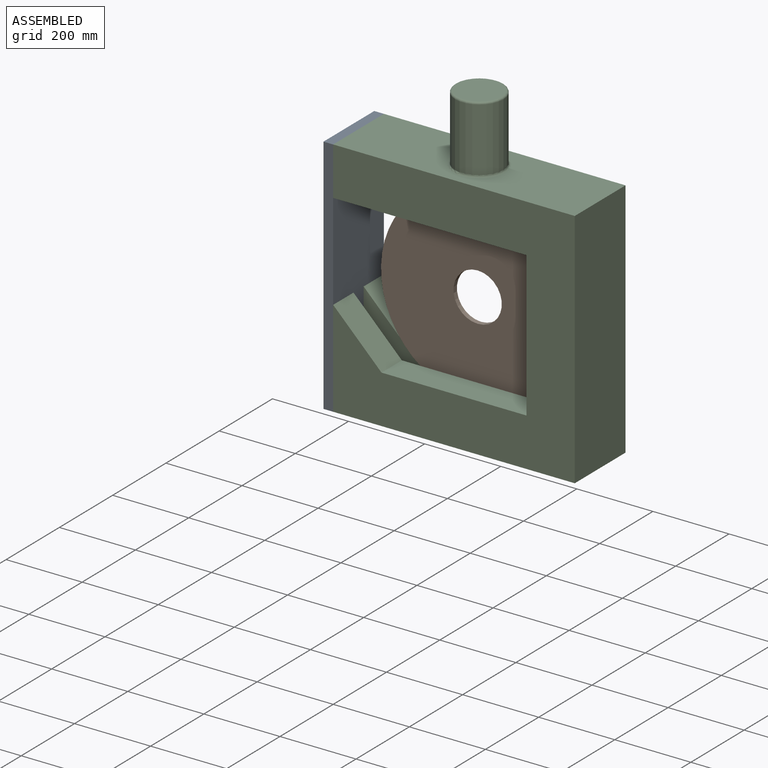
[diagram: assembled view]
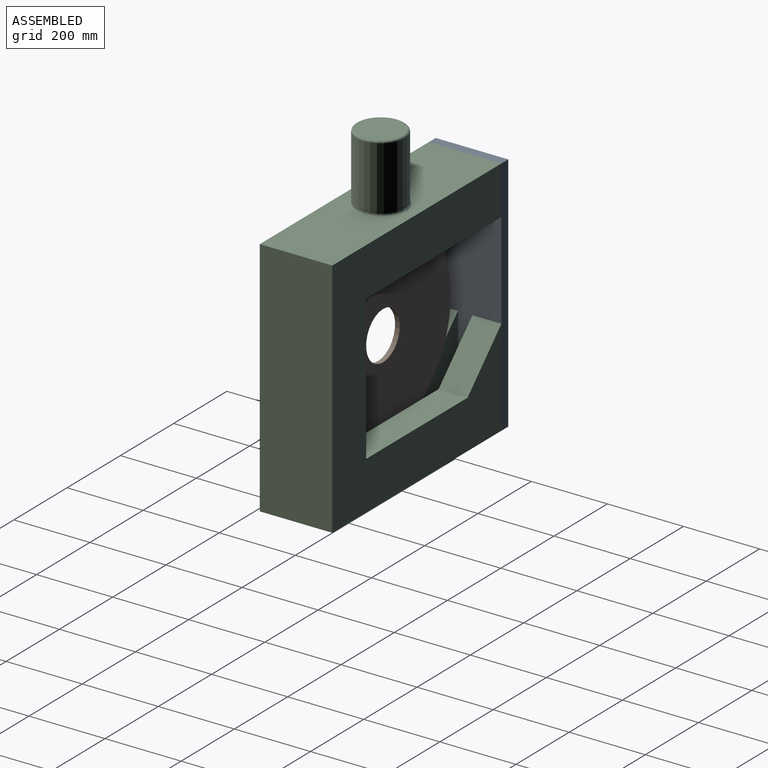
[diagram: assembled view, second angle]
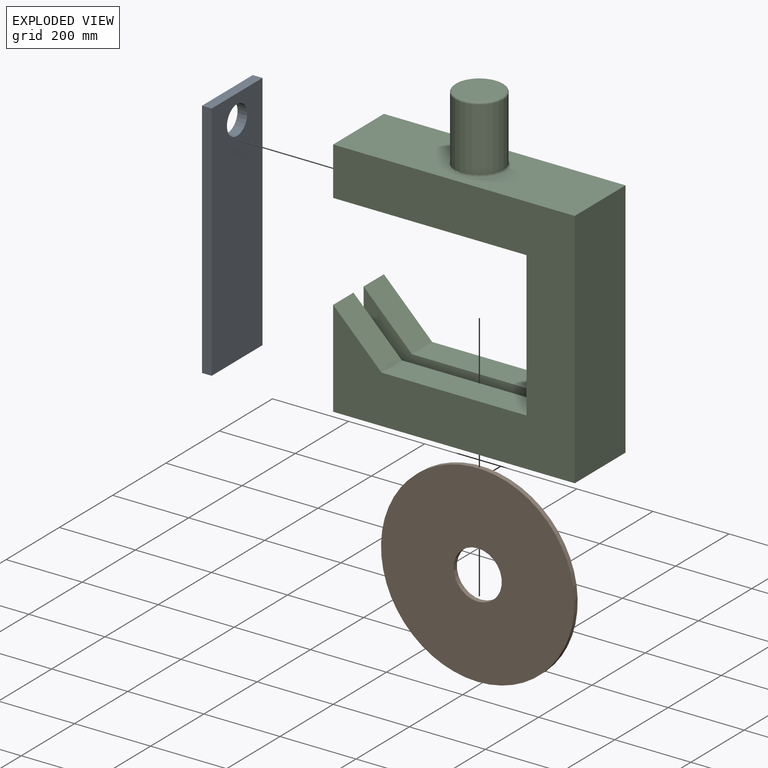
[diagram: exploded view]
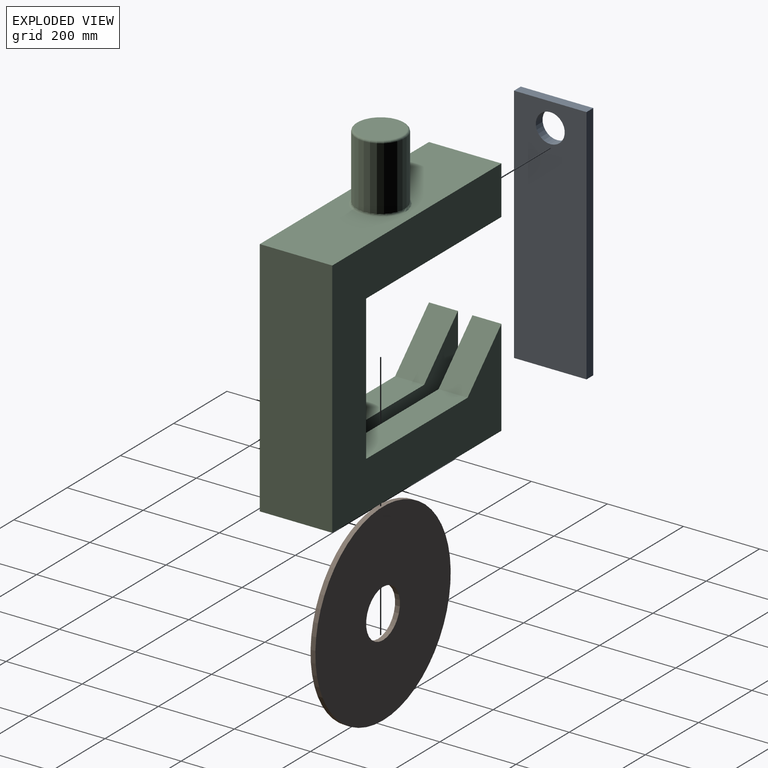
[diagram: exploded view, second angle]
ASSEMBLY  parts=3 mates=5
PART A: 7 faces, bbox 635x190.5x25.4 mm
  f0: plane 635x25.4mm, normal (0,1,0), area 16129mm2, adj f1,f4,f5,f6
  f1: plane 190.5x25.4mm, normal (-1,0,0), area 4838.7mm2, adj f0,f2,f5,f6
  f2: plane 635x25.4mm, normal (0,-1,0), area 16129mm2, adj f1,f4,f5,f6
  f3: cylinder r=38.1mm len=76.2mm, axis (0,0,-1), area 6080.5mm2, adj f5,f6
  f4: plane 190.5x25.4mm, normal (1,0,0), area 4838.7mm2, adj f0,f2,f5,f6
  f5: plane 635x190.5mm, normal (0,0,1), area 116407.1mm2, adj f0,f1,f2,f3,f4
  f6: plane 635x190.5mm, normal (0,0,-1), area 116407.1mm2, adj f0,f1,f2,f3,f4
PART B: 6 faces, bbox 508x12.7x508 mm
  f0: cylinder r=254mm len=508mm, axis (0,1,0), area 20268.3mm2, adj f2,f3,f4
  f1: cylinder r=63.5mm len=127mm, axis (0,1,0), area 5067.1mm2, adj f2,f3
  f2: plane 508x508mm, normal (0,-1,0), area 190015.3mm2, adj f0,f1
  f3: plane 508x508mm, normal (0,1,0), area 190015.3mm2, adj f0,f1
  f4: cylinder r=1.27mm len=127mm, axis (1,0,0), area 1013.4mm2, adj f0,f5
  f5: plane 2.54x2.54mm, normal (1,0,0), area 5.1mm2, adj f4
PART C: 24 faces, bbox 635x190.5x812.8 mm
  f0: plane 508x76.2mm, normal (0,0,-1), area 38709.6mm2, adj f1,f8,f14,f18
  f1: plane 381x76.2mm, normal (-1,0,0), area 29032.2mm2, adj f0,f2,f14,f18
  f2: plane 381x76.2mm, normal (0,0,1), area 29032.2mm2, adj f1,f3,f14,f18
  f3: plane 127x127mm, normal (0.71,0,0.71), area 13685.9mm2, adj f2,f4,f14,f18
  f4: plane 254x190.5mm, normal (-1,0,0), area 41129mm2, adj f3,f5,f12,f13,f14,f15,f18,f19
  f5: plane 635x190.5mm, normal (0,0,-1), area 120967.5mm2, adj f4,f6,f13,f14
  f6: plane 635x190.5mm, normal (1,0,0), area 120967.5mm2, adj f5,f7,f13,f14
  f7: plane 635x190.5mm, normal (0,0,1), area 106191.9mm2, adj f6,f8,f13,f14,f22
  f8: plane 190.5x127mm, normal (-1,0,0), area 21774.2mm2, adj f0,f7,f9,f13,f14,f17,f18,f19
  f9: plane 508x76.2mm, normal (0,0,-1), area 38709.6mm2, adj f8,f10,f13,f19
  f10: plane 381x76.2mm, normal (-1,0,0), area 29032.2mm2, adj f9,f11,f13,f19
  f11: plane 381x76.2mm, normal (0,0,1), area 29032.2mm2, adj f10,f12,f13,f19
  f12: plane 127x127mm, normal (0.71,0,0.71), area 13685.9mm2, adj f4,f11,f13,f19
  f13: plane 635x635mm, normal (0,-1,0), area 217741.5mm2, adj f4,f5,f6,f7,f8,f9,f10,f11
  f14: plane 635x635mm, normal (0,1,0), area 217741.5mm2, adj f0,f1,f2,f3,f4,f5,f6,f7
  f15: plane 571.5x38.1mm, normal (0,0,1), area 21774.1mm2, adj f4,f16,f18,f19
  f16: plane 508x38.1mm, normal (-1,0,0), area 19354.8mm2, adj f15,f17,f18,f19
  f17: plane 571.5x38.1mm, normal (0,0,-1), area 21774.1mm2, adj f8,f16,f18,f19
  f18: plane 571.5x508mm, normal (0,-1,0), area 104838.5mm2, adj f0,f1,f2,f3,f4,f8,f15,f16
  f19: plane 571.5x508mm, normal (0,1,0), area 104838.5mm2, adj f4,f8,f9,f10,f11,f12,f15,f16
  f20: cylinder r=63.5mm len=167.64mm, axis (0,0,-1), area 66885.4mm2, adj f22,f23
  f21: plane 116.84x116.84mm, normal (0,0,1), area 10721.9mm2, adj f23
  f22: torus R=68.58mm, axis (0,0,-1), area 3276.3mm2, adj f7,f20
  f23: torus R=58.42mm, axis (0,0,1), area 3091.2mm2, adj f20,f21
PLACE A rot(axis=(0,1,0),90deg) t=(-321.48,50.5,-20.7)mm
PLACE B rot(axis=(-0.71,0,0.71),180deg) t=(8.72,44.15,-14.84)mm
PLACE C t=(8.72,50.5,-20.7)mm fixed
MATE cylindrical B.f4 <-> C.f20  axis (0,0,-1) through (8.72,50.5,-268.84)mm
MATE planar A.f2 <-> C.f13  axis (0,-1,0) through (-321.48,-44.75,-20.7)mm
MATE planar A.f5 <-> C.f8  axis (1,0,0) through (-308.78,50.5,-30.65)mm
MATE parallel B.f0 <-> C.f19  axis (0,-1,0) through (8.72,44.15,-14.84)mm
MATE planar A.f1 <-> C.f20  axis (0,0,1) through (-321.48,50.5,296.8)mm
